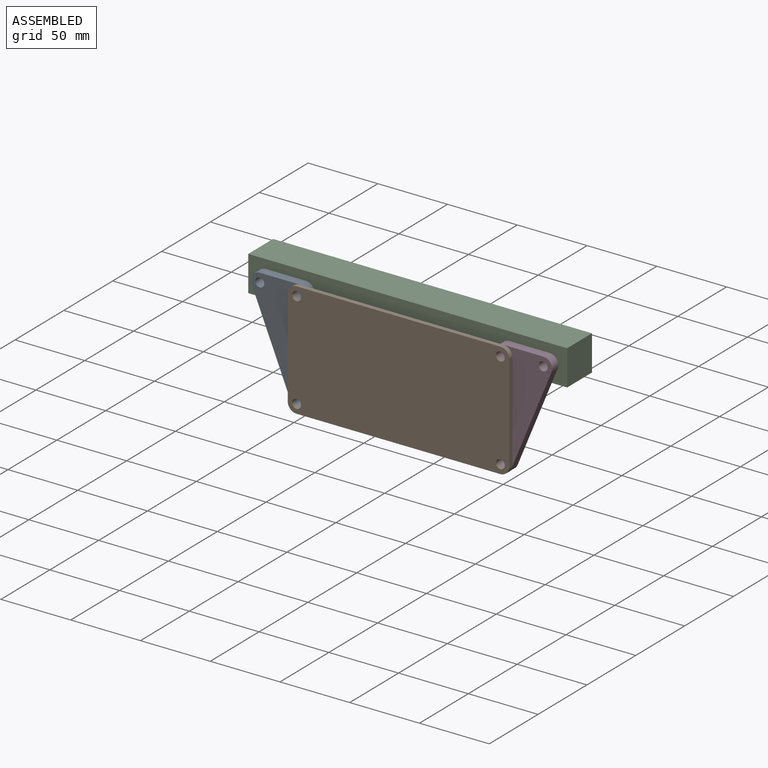
[diagram: assembled view]
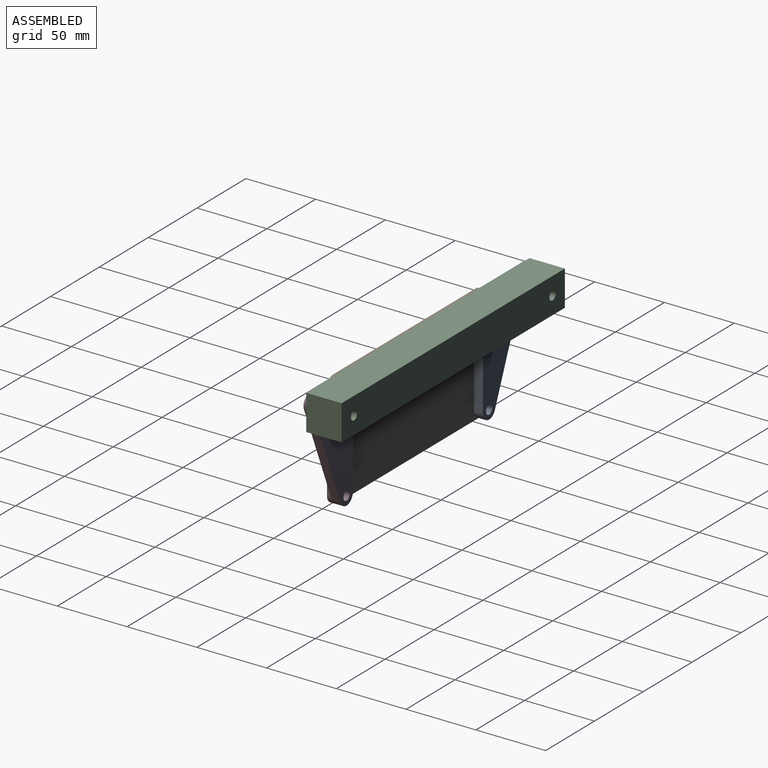
[diagram: assembled view, second angle]
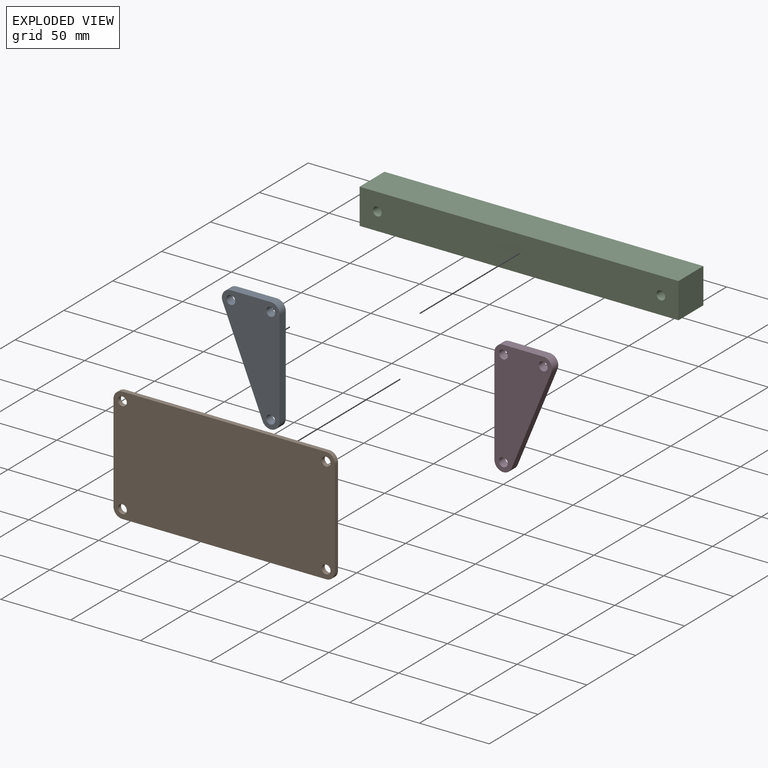
[diagram: exploded view]
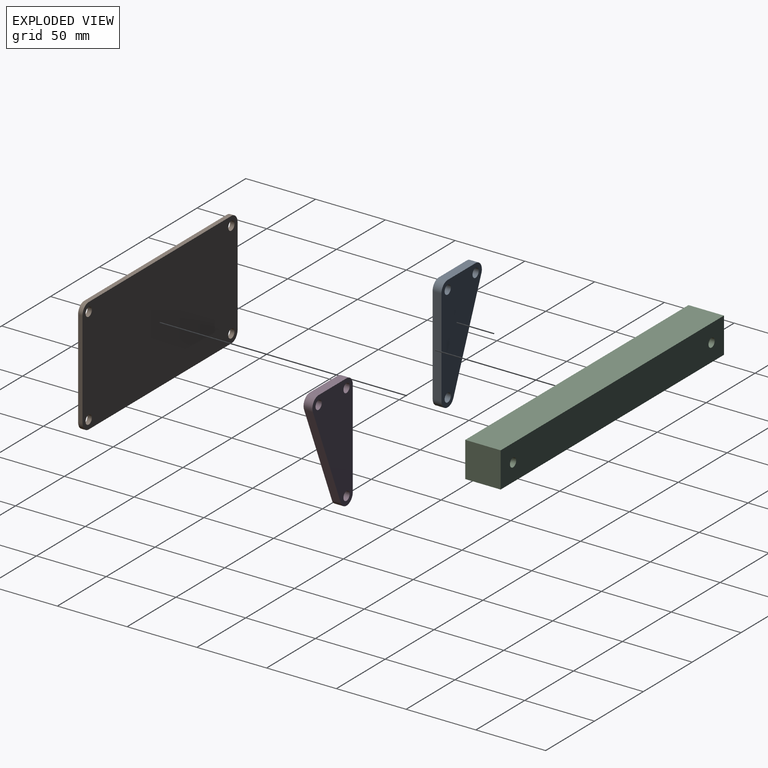
[diagram: exploded view, second angle]
ASSEMBLY  parts=4 mates=6
PART A: 11 faces, bbox 41.3x6.4x82.6 mm
  f0: plane 28.63x6.35mm, normal (0,0,1), area 181.8mm2, adj f1,f8,f9,f10
  f1: cylinder r=6.35mm len=8.76mm, axis (0,1,0), area 79mm2, adj f0,f2,f9,f10
  f2: plane 69.85x28.63mm, normal (-0.93,0,-0.38), area 479.4mm2, adj f1,f3,f9,f10
  f3: cylinder r=6.35mm len=12.23mm, axis (0,1,0), area 111mm2, adj f2,f4,f9,f10
  f4: plane 69.85x6.35mm, normal (1,0,0), area 443.5mm2, adj f3,f8,f9,f10
  f5: cylinder r=3.17mm len=6.35mm, axis (0,1,0), area 126.7mm2, adj f9,f10
  f6: cylinder r=3.17mm len=6.35mm, axis (0,1,0), area 126.7mm2, adj f9,f10
  f7: cylinder r=3.17mm len=6.35mm, axis (0,1,0), area 126.7mm2, adj f9,f10
  f8: cylinder r=6.35mm len=6.35mm, axis (0,1,0), area 63.3mm2, adj f0,f4,f9,f10
  f9: plane 82.55x41.33mm, normal (0,-1,0), area 2136.5mm2, adj f0,f1,f2,f3,f4,f5,f6,f7
  f10: plane 82.55x41.33mm, normal (0,1,0), area 2136.5mm2, adj f0,f1,f2,f3,f4,f5,f6,f7
PART B: 14 faces, bbox 158.8x3.2x82.6 mm
  f0: plane 146.05x3.18mm, normal (0,0,-1), area 463.7mm2, adj f1,f8,f12,f13
  f1: cylinder r=6.35mm len=6.35mm, axis (0,1,0), area 31.7mm2, adj f0,f2,f12,f13
  f2: plane 69.85x3.18mm, normal (1,0,0), area 221.8mm2, adj f1,f3,f12,f13
  f3: cylinder r=6.35mm len=6.35mm, axis (0,1,0), area 31.7mm2, adj f2,f4,f12,f13
  f4: plane 146.05x3.18mm, normal (0,0,1), area 463.7mm2, adj f3,f5,f12,f13
  f5: cylinder r=6.35mm len=6.35mm, axis (0,1,0), area 31.7mm2, adj f4,f6,f12,f13
  f6: plane 69.85x3.18mm, normal (-1,0,0), area 221.8mm2, adj f5,f8,f12,f13
  f7: cylinder r=3.17mm len=6.35mm, axis (0,1,0), area 63.3mm2, adj f12,f13
  f8: cylinder r=6.35mm len=6.35mm, axis (0,1,0), area 31.7mm2, adj f0,f6,f12,f13
  f9: cylinder r=3.17mm len=6.35mm, axis (0,1,0), area 63.3mm2, adj f12,f13
  f10: cylinder r=3.17mm len=6.35mm, axis (0,1,0), area 63.3mm2, adj f12,f13
  f11: cylinder r=3.17mm len=6.35mm, axis (0,1,0), area 63.3mm2, adj f12,f13
  f12: plane 158.75x82.55mm, normal (0,-1,0), area 12943.5mm2, adj f0,f1,f2,f3,f4,f5,f6,f7
  f13: plane 158.75x82.55mm, normal (0,1,0), area 12943.5mm2, adj f0,f1,f2,f3,f4,f5,f6,f7
PART C: 8 faces, bbox 228.6x25.4x25.4 mm
  f0: plane 228.6x25.4mm, normal (0,0,-1), area 5806.4mm2, adj f1,f3,f4,f5
  f1: plane 25.4x25.4mm, normal (1,0,0), area 645.2mm2, adj f0,f2,f4,f5
  f2: plane 228.6x25.4mm, normal (0,0,1), area 5806.4mm2, adj f1,f3,f4,f5
  f3: plane 25.4x25.4mm, normal (-1,0,0), area 645.2mm2, adj f0,f2,f4,f5
  f4: plane 228.6x25.4mm, normal (0,-1,0), area 5743.1mm2, adj f0,f1,f2,f3,f6,f7
  f5: plane 228.6x25.4mm, normal (0,1,0), area 5743.1mm2, adj f0,f1,f2,f3,f6,f7
  f6: cylinder r=3.17mm len=25.4mm, axis (0,-1,0), area 506.7mm2, adj f4,f5
  f7: cylinder r=3.17mm len=25.4mm, axis (0,-1,0), area 506.7mm2, adj f4,f5
PART D: same geometry as A
PLACE A t=(105.29,-36.29,6.74)mm
PLACE B t=(171.96,-42.64,3.57)mm
PLACE C t=(171.9,-10.89,38.49)mm
PLACE D rot(axis=(0,0,1),180deg) t=(238.52,-42.64,6.74)mm
MATE planar C.f4 <-> D.f9  axis (0,-1,0) through (171.9,-36.29,38.49)mm
MATE planar A.f9 <-> B.f13  axis (0,-1,0) through (89.93,-42.64,11.73)mm
MATE slider C.f6 <-> A.f1  axis (0,1,0) through (70.3,-10.89,38.49)mm
MATE slider B.f5 <-> A.f8  axis (0,-1,0) through (98.94,-45.82,38.49)mm
MATE slider D.f1 <-> C.f7  axis (0,1,0) through (273.5,-36.29,38.49)mm
MATE planar A.f10 <-> C.f4  axis (0,1,0) through (89.93,-36.29,11.73)mm
